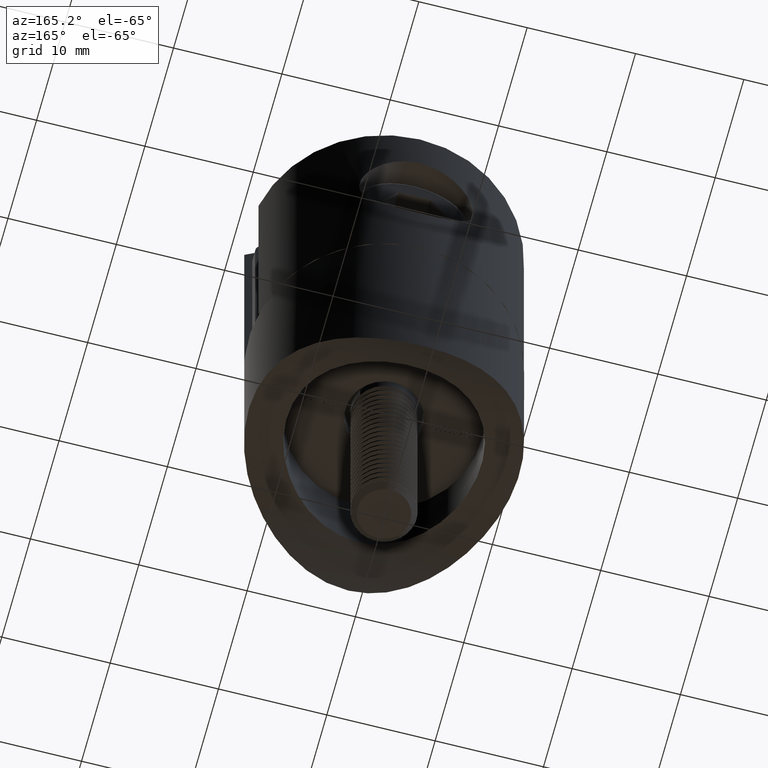
[diagram: clean part render]
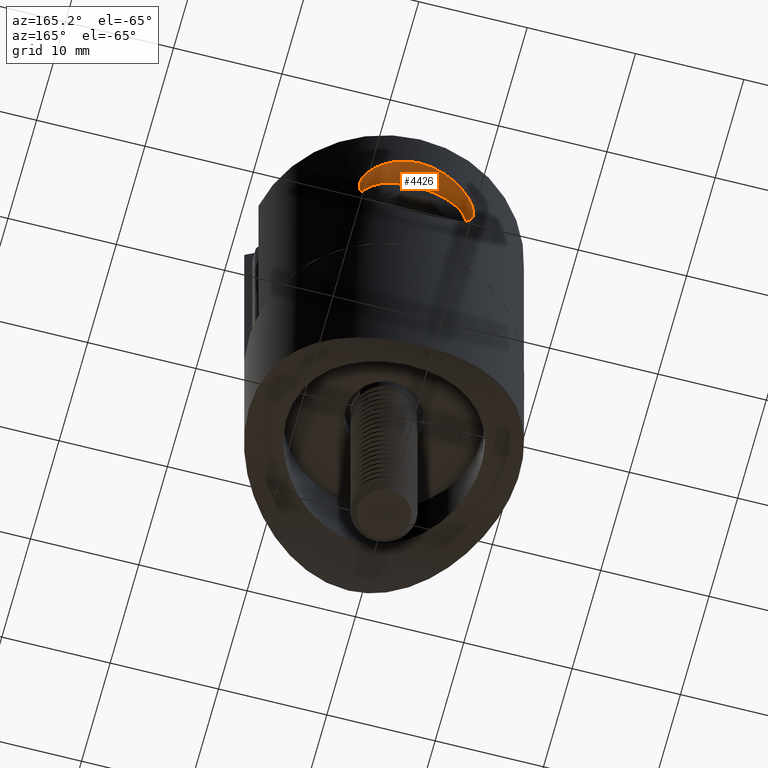
[diagram: same view with one face highlighted and labeled with its STEP entity id]
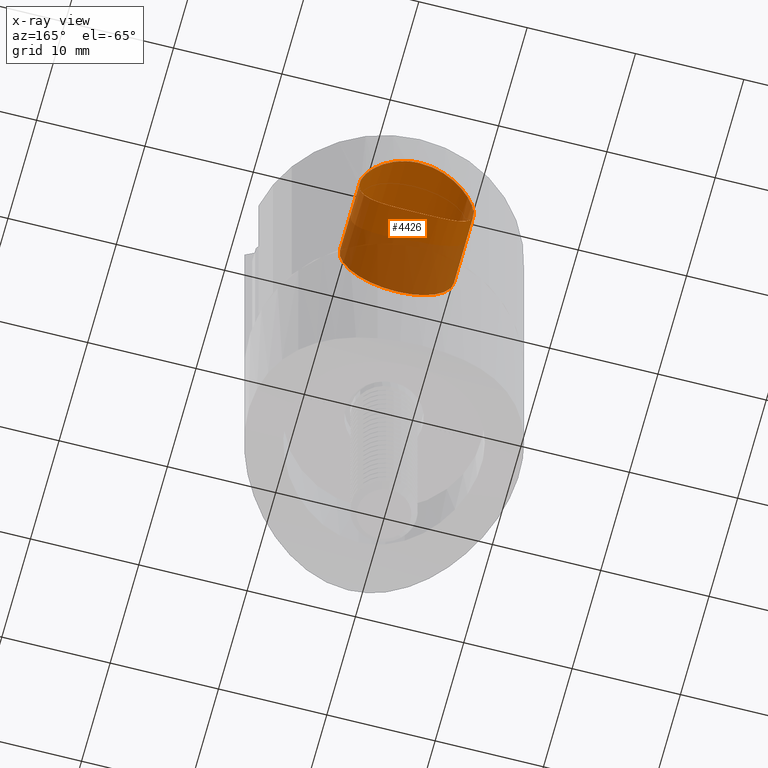
[diagram: x-ray of the same camera — body ghosted, the highlighted face saturated]
A machine part, auxiliary view. The second image highlights one B-rep face of the part: STEP entity #4426.
The next image is the same camera in x-ray: the body ghosted, the highlighted face saturated — about 42% of this face is hidden behind the body in this view.
In plain terms, the highlighted cylindrical surface (bore or boss wall) has radius 5.292 mm, axis along (0, 1, 0).
Its self-contained STEP definition (entity closure, byte-faithful):
#72 = CARTESIAN_POINT ( 'NONE',  ( -5.120690104198881265, 11.40325280270463182, 11.11975574198421057 ) ) ;
#151 = CARTESIAN_POINT ( 'NONE',  ( -3.496662824346986387, 12.00176128583344415, 16.47595316070690430 ) ) ;
#226 = CARTESIAN_POINT ( 'NONE',  ( -4.948487348484857939, 11.47900981942676957, 14.38346119590000960 ) ) ;
#303 = CARTESIAN_POINT ( 'NONE',  ( -5.257356500042793535, 11.34089256880115393, 11.80232960039591816 ) ) ;
#378 = CARTESIAN_POINT ( 'NONE',  ( 4.749221581186708008, 11.56355666287305972, 10.14000020676140501 ) ) ;
#531 = CARTESIAN_POINT ( 'NONE',  ( 5.018261826841545314, 11.44936087849684547, 14.21517173041472581 ) ) ;
#1866 = CARTESIAN_POINT ( 'NONE',  ( -4.750904837036441286, 11.56287723443356441, 10.14290468325279448 ) ) ;
#1940 = CARTESIAN_POINT ( 'NONE',  ( -5.292482028073725253, 11.32429398491752792, 12.15738354927841414 ) ) ;
#2021 = CARTESIAN_POINT ( 'NONE',  ( -3.240249260250868790, 12.07630773496677001, 8.301818445996673290 ) ) ;
#2100 = CARTESIAN_POINT ( 'NONE',  ( -2.663319323439527597, 12.21652068824061566, 17.08593670028259126 ) ) ;
#2176 = CARTESIAN_POINT ( 'NONE',  ( -0.3559898117245970384, 12.49979496377092403, 7.208471913906825179 ) ) ;
#2400 = CARTESIAN_POINT ( 'NONE',  ( 5.120225591713654545, 11.40346729644162949, 13.88316247215431787 ) ) ;
#3191 = EDGE_CURVE ( 'NONE', #13066, #13066, #3708, .T. ) ;
#3656 = CARTESIAN_POINT ( 'NONE',  ( -2.358198827689561128, 12.27652297927316383, 7.759308137895018831 ) ) ;
#3708 = CIRCLE ( 'NONE', #17381, 5.292012392374090268 ) ;
#3810 = CARTESIAN_POINT ( 'NONE',  ( -5.007401075915911548, 11.45334313425793482, 14.22096288055981717 ) ) ;
#3882 = CARTESIAN_POINT ( 'NONE',  ( -4.587305217342358965, 11.62965328801055342, 15.16105851005399607 ) ) ;
#3956 = CARTESIAN_POINT ( 'NONE',  ( 5.015697280348542009, 11.45049034384945053, 10.77736090744462238 ) ) ;
#4030 = CARTESIAN_POINT ( 'NONE',  ( 2.668046167727110785, 12.21543398327353458, 17.08299496508877269 ) ) ;
#4103 = ORIENTED_EDGE ( 'NONE', *, *, #3191, .F. ) ;
#4106 = CARTESIAN_POINT ( 'NONE',  ( 3.235641336498024767, 12.07749654913560455, 16.70153999679850543 ) ) ;
#4414 = CARTESIAN_POINT ( 'NONE',  ( 1.530808498934191521E-15, 4.500000000000000888, 12.50000000000000000 ) ) ;
#4426 = ADVANCED_FACE ( 'NONE', ( #19449, #18086 ), #20015, .F. ) ;
#5420 = CARTESIAN_POINT ( 'NONE',  ( -4.202663391078285571, 11.77411674724187485, 15.73453582021868158 ) ) ;
#5500 = CARTESIAN_POINT ( 'NONE',  ( -2.360866223495184713, 12.27930200201598510, 17.24886392907615118 ) ) ;
#5583 = CARTESIAN_POINT ( 'NONE',  ( 1.713429922678352257, 12.38627607667422659, 7.481009312378199105 ) ) ;
#5663 = CARTESIAN_POINT ( 'NONE',  ( -1.726263214081570130, 12.38441289598844364, 7.485621125469169357 ) ) ;
#5963 = CARTESIAN_POINT ( 'NONE',  ( 4.586875141088484931, 11.62979799470484821, 15.16151100384612782 ) ) ;
#7022 = DIRECTION ( 'NONE',  ( -0.000000000000000000, 1.000000000000000000, -0.000000000000000000 ) ) ;
#7216 = CARTESIAN_POINT ( 'NONE',  ( -0.7044565168728209592, 12.48494771920450397, 7.243256124030742704 ) ) ;
#7298 = CARTESIAN_POINT ( 'NONE',  ( -5.291533018585331760, 11.32473746219063671, 12.85697389681832092 ) ) ;
#7374 = CARTESIAN_POINT ( 'NONE',  ( -2.662471414258687830, 12.21414606674546910, 7.923264590278334296 ) ) ;
#7452 = CARTESIAN_POINT ( 'NONE',  ( -3.623029511412105386, 11.96409607869966862, 16.36109982058070855 ) ) ;
#8200 = CARTESIAN_POINT ( 'NONE',  ( 1.719532517250674797, 12.38547518272578252, 17.51704318112500403 ) ) ;
#9007 = CARTESIAN_POINT ( 'NONE',  ( 0.6916119212923232951, 12.48208034008343503, 7.250431738653143832 ) ) ;
#9076 = CARTESIAN_POINT ( 'NONE',  ( -2.202724655238524232, 12.30544273721423032, 7.685122482410058353 ) ) ;
#9151 = CARTESIAN_POINT ( 'NONE',  ( -2.168404344971008868E-16, 12.50000000000000355, 17.79201239237408672 ) ) ;
#9231 = CARTESIAN_POINT ( 'NONE',  ( 0.8671124589352778855, 12.47107644538116666, 7.276579926028795775 ) ) ;
#9314 = CARTESIAN_POINT ( 'NONE',  ( -0.7013327475183728232, 12.48500059340587853, 17.75685404602043604 ) ) ;
#9557 = CARTESIAN_POINT ( 'NONE',  ( 1.388067307588406685, 12.42739201172654795, 17.61853267059722938 ) ) ;
#10743 = CARTESIAN_POINT ( 'NONE',  ( -5.109795299553456793, 11.40802903585008110, 13.88772143026255179 ) ) ;
#10824 = CARTESIAN_POINT ( 'NONE',  ( 4.201465035372312862, 11.77451487236510097, 9.264258870182441541 ) ) ;
#10906 = CARTESIAN_POINT ( 'NONE',  ( 2.804873101946648184, 12.18212330994441572, 8.009183200682002735 ) ) ;
#10925 = ORIENTED_EDGE ( 'NONE', *, *, #13474, .F. ) ;
#10986 = CARTESIAN_POINT ( 'NONE',  ( -5.153257425971026429, 11.38838771924258708, 13.71647777672825796 ) ) ;
#11060 = CARTESIAN_POINT ( 'NONE',  ( 2.657625677055203806, 12.21520479563610273, 7.920440978174842606 ) ) ;
#11140 = CARTESIAN_POINT ( 'NONE',  ( -2.168404344971008868E-16, 12.50000000000000355, 17.79201239237408672 ) ) ;
#11617 = DIRECTION ( 'NONE',  ( 0.000000000000000000, 0.000000000000000000, 1.000000000000000000 ) ) ;
#11759 = CARTESIAN_POINT ( 'NONE',  ( 0.7069423161830247215, 12.48467202713432478, 17.75607649411200128 ) ) ;
#12565 = CARTESIAN_POINT ( 'NONE',  ( -3.092391935135757830, 12.11233974117765477, 16.79792738418057496 ) ) ;
#12721 = CARTESIAN_POINT ( 'NONE',  ( 2.194550246919253933, 12.30692360017836329, 7.681335974554936996 ) ) ;
#12876 = CARTESIAN_POINT ( 'NONE',  ( 3.231775740098622673, 12.07855088131722354, 8.295426935486878151 ) ) ;
#12956 = CARTESIAN_POINT ( 'NONE',  ( 3.502573140902946580, 12.00194945285960912, 16.48190592734371762 ) ) ;
#13066 = VERTEX_POINT ( 'NONE', #14278 ) ;
#13474 = EDGE_CURVE ( 'NONE', #13865, #13865, #21995, .T. ) ;
#13493 = CARTESIAN_POINT ( 'NONE',  ( 5.292357171095976476, 11.32435233117508844, 12.84378072666122073 ) ) ;
#13865 = VERTEX_POINT ( 'NONE', #20171 ) ;
#14154 = CARTESIAN_POINT ( 'NONE',  ( 1.530808498934191521E-15, 12.50000000000000000, 12.50000000000000000 ) ) ;
#14278 = CARTESIAN_POINT ( 'NONE',  ( 1.530808498934191521E-15, 4.500000000000000888, 17.79201239237409027 ) ) ;
#14343 = CARTESIAN_POINT ( 'NONE',  ( -4.206762273487220760, 11.77262141855216981, 9.271079760186971441 ) ) ;
#14416 = CARTESIAN_POINT ( 'NONE',  ( -5.019120057504548704, 11.44900260099166367, 10.78669064347287332 ) ) ;
#14424 = AXIS2_PLACEMENT_3D ( 'NONE', #14154, #7022, #17727 ) ;
#14578 = CARTESIAN_POINT ( 'NONE',  ( -2.811775907588712098, 12.18053866584098444, 8.013470325126903049 ) ) ;
#14649 = CARTESIAN_POINT ( 'NONE',  ( 4.582956814855210226, 11.63133765979542211, 9.831885321838415237 ) ) ;
#15326 = CARTESIAN_POINT ( 'NONE',  ( 0.3540125968132148970, 12.50000000000000533, 17.79201239237409382 ) ) ;
#15984 = EDGE_LOOP ( 'NONE', ( #10925 ) ) ;
#16118 = CARTESIAN_POINT ( 'NONE',  ( -1.395342088662011371, 12.42671312097621694, 7.383102930748633774 ) ) ;
#16199 = CARTESIAN_POINT ( 'NONE',  ( -1.721653126629567376, 12.38510627703779221, 17.51610490856080204 ) ) ;
#16274 = CARTESIAN_POINT ( 'NONE',  ( 0.1670841722139269347, 12.50009934360470432, 7.207752952840593252 ) ) ;
#16349 = CARTESIAN_POINT ( 'NONE',  ( -5.256722260006652547, 11.34119124473413187, 13.20299837583370994 ) ) ;
#16422 = CARTESIAN_POINT ( 'NONE',  ( -3.986027420943357935, 11.85013122275457143, 9.002329260973381153 ) ) ;
#16503 = CARTESIAN_POINT ( 'NONE',  ( 2.364320850874946256, 12.27871224900708391, 17.24736782578233374 ) ) ;
#16579 = CARTESIAN_POINT ( 'NONE',  ( 5.255824966533535481, 11.34160907200074497, 11.79059847808417061 ) ) ;
#17381 = AXIS2_PLACEMENT_3D ( 'NONE', #4414, #22298, #11617 ) ;
#17727 = DIRECTION ( 'NONE',  ( 0.000000000000000000, 0.000000000000000000, 1.000000000000000000 ) ) ;
#17996 = CARTESIAN_POINT ( 'NONE',  ( -3.231679161247437815, 12.07580948293156631, 16.69417503712763917 ) ) ;
#18077 = CARTESIAN_POINT ( 'NONE',  ( 0.3417302849583357394, 12.49655460830357967, 7.216108026032687306 ) ) ;
#18086 = FACE_OUTER_BOUND ( 'NONE', #15984, .T. ) ;
#18156 = CARTESIAN_POINT ( 'NONE',  ( 1.381742631545303635, 12.42816616368229354, 7.379589180595749198 ) ) ;
#18231 = CARTESIAN_POINT ( 'NONE',  ( -1.383368306189933339, 12.42792820905865803, 17.61983146337183825 ) ) ;
#18381 = CARTESIAN_POINT ( 'NONE',  ( 4.752656624930040152, 11.56213956386522490, 14.85308751070959055 ) ) ;
#18896 = CARTESIAN_POINT ( 'NONE',  ( 4.204895558547546486, 11.77329513344856338, 15.73139563118424888 ) ) ;
#19449 = FACE_OUTER_BOUND ( 'NONE', #22159, .T. ) ;
#19696 = CARTESIAN_POINT ( 'NONE',  ( -3.984381975254525976, 11.85067304244556219, 15.99946473797774971 ) ) ;
#19775 = CARTESIAN_POINT ( 'NONE',  ( -4.587983894090647219, 11.62935370851508310, 9.840455202807360635 ) ) ;
#19847 = CARTESIAN_POINT ( 'NONE',  ( 3.984948942381418835, 11.85053690206133581, 9.000859877767494410 ) ) ;
#19928 = CARTESIAN_POINT ( 'NONE',  ( -0.3540125968132203371, 12.50000000000000000, 17.79201239237408316 ) ) ;
#20015 = CYLINDRICAL_SURFACE ( 'NONE', #14424, 5.292012392374090268 ) ;
#20171 = CARTESIAN_POINT ( 'NONE',  ( 0.000000000000000000, 12.50000000000000000, 17.79201239237409027 ) ) ;
#20229 = CARTESIAN_POINT ( 'NONE',  ( 5.117330549160078235, 11.40476744486970695, 11.10720617147880773 ) ) ;
#21515 = CARTESIAN_POINT ( 'NONE',  ( 3.498265268250298821, 12.00321552974276251, 8.514283027941173643 ) ) ;
#21597 = CARTESIAN_POINT ( 'NONE',  ( -3.503206900048717820, 12.00173179222340636, 8.518837278557123582 ) ) ;
#21673 = CARTESIAN_POINT ( 'NONE',  ( -4.749462092969745086, 11.56345033793493471, 14.85928735058362626 ) ) ;
#21750 = CARTESIAN_POINT ( 'NONE',  ( 2.352795880033144549, 12.27756303121973858, 7.756616542949289261 ) ) ;
#21826 = CARTESIAN_POINT ( 'NONE',  ( 5.291662371495867490, 11.32467701495880341, 12.14568522389060767 ) ) ;
#21987 = CARTESIAN_POINT ( 'NONE',  ( 3.988332662647145366, 11.84938866981895700, 15.99525335185473018 ) ) ;
#21995 = B_SPLINE_CURVE_WITH_KNOTS ( 'NONE', 3,
 ( #9151, #19928, #9314, #18231, #16199, #5500, #2100, #12565, #17996, #151, #7452, #19696, #5420, #3882, #21673, #226, #3810, #10743, #10986, #16349, #7298, #1940, #303, #72, #14416, #1866, #19775, #14343, #16422, #21597, #2021, #14578, #7374, #3656, #9076, #5663, #16118, #7216, #2176, #16274, #18077, #9007, #9231, #18156, #5583, #12721, #21750, #11060, #10906, #12876, #21515, #19847, #10824, #14649, #378, #3956, #20229, #16579, #21826, #13493, #22435, #2400, #531, #18381, #5963, #18896, #21987, #12956, #4106, #4030, #16503, #8200, #9557, #11759, #15326, #11140 ),
 .UNSPECIFIED., .T., .F.,
 ( 4, 2, 2, 2, 2, 2, 2, 2, 2, 2, 2, 2, 2, 2, 2, 2, 2, 2, 2, 2, 2, 2, 2, 2, 2, 2, 2, 2, 2, 2, 2, 2, 2, 2, 2, 2, 2, 4 ),
 ( 0.000000000000000000, 0.001046123003756083266, 0.002092246007512166533, 0.003138369011268249582, 0.003661430513146289156, 0.004184492015024328729, 0.005230615018780398334, 0.006276738022536471409, 0.006799799524414507079, 0.007322861026292541882, 0.008368984030048610620, 0.009415107033804681960, 0.01046123003756075157, 0.01150735304131682291, 0.01255347604507289078, 0.01359959904882896212, 0.01412266055070699779, 0.01464572205258503519, 0.01569184505634110827, 0.01673796806009717961, 0.01726102956197521701, 0.01778409106385325789, 0.01883021406760932923, 0.01935327556948736316, 0.01987633707136539710, 0.02092246007512147191, 0.02196858307887754325, 0.02301470608263361459, 0.02406082908638968940, 0.02510695209014575727, 0.02615307509390182861, 0.02719919809765789995, 0.02824532110141397476, 0.02929144410517004610, 0.03033756710892611397, 0.03138369011268218184, 0.03242981311643824971, 0.03347593612019431758 ),
 .UNSPECIFIED. ) ;
#22159 = EDGE_LOOP ( 'NONE', ( #4103 ) ) ;
#22298 = DIRECTION ( 'NONE',  ( -0.000000000000000000, 1.000000000000000000, -0.000000000000000000 ) ) ;
#22435 = CARTESIAN_POINT ( 'NONE',  ( 5.258513951089545557, 11.34036187770257875, 13.19128833391872391 ) ) ;